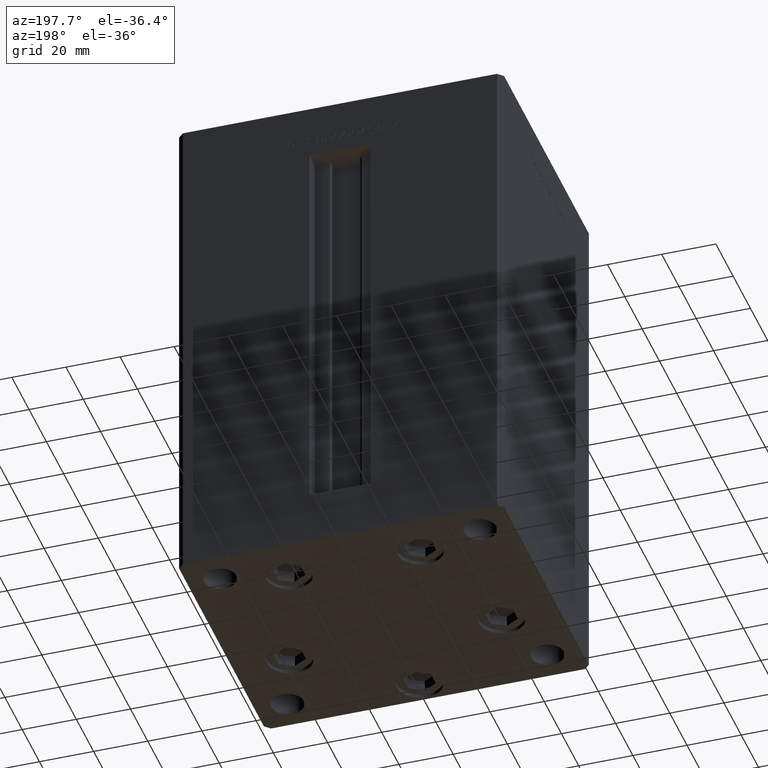
[diagram: clean part render]
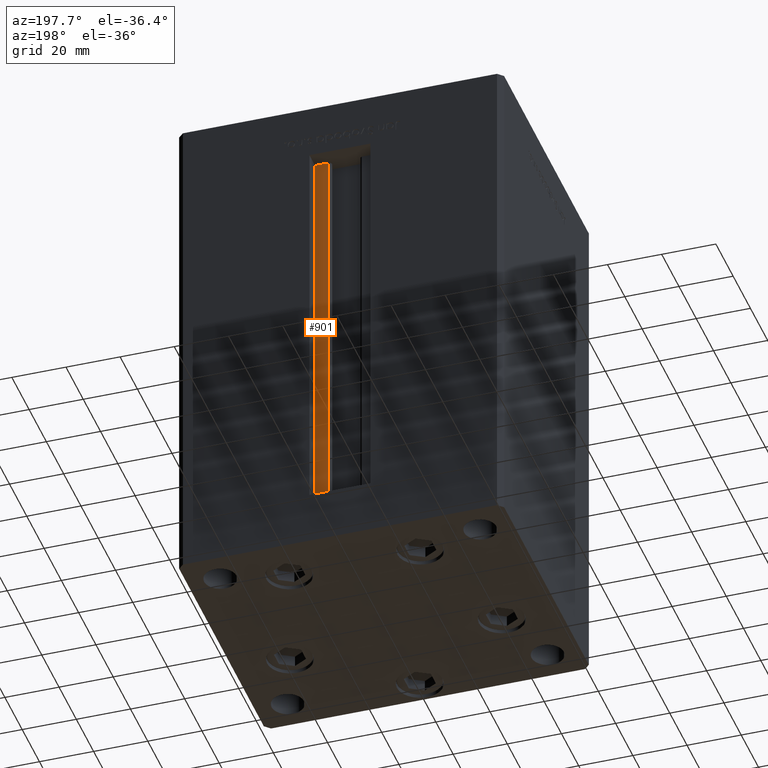
[diagram: same view with one face highlighted and labeled with its STEP entity id]
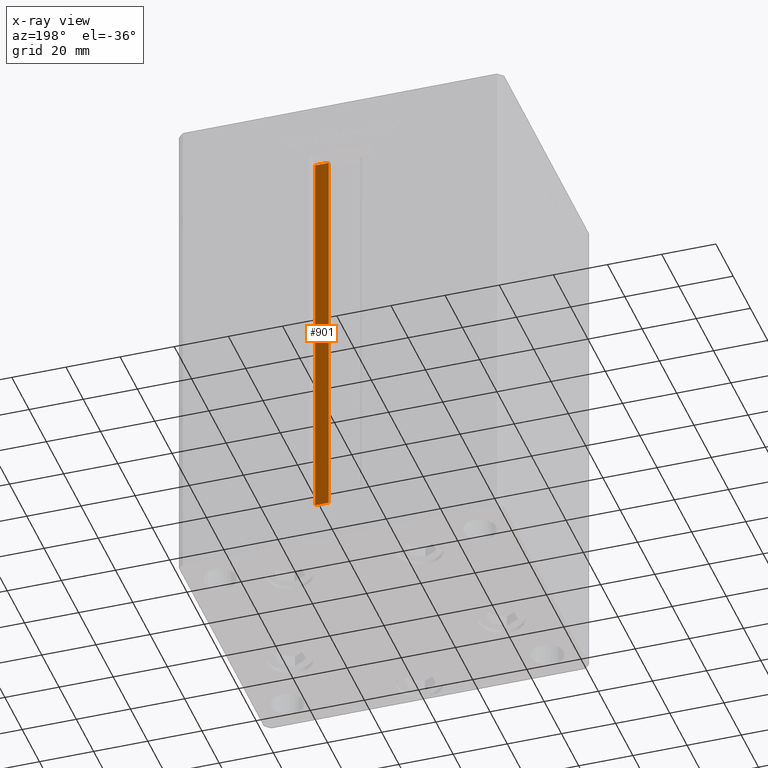
[diagram: x-ray of the same camera — body ghosted, the highlighted face saturated]
A machine part, auxiliary view. The second image highlights one B-rep face of the part: STEP entity #901.
The next image is the same camera in x-ray: the body ghosted, the highlighted face saturated — about 0% of this face is hidden behind the body in this view.
In plain terms, the highlighted planar face has unit normal (0, -1, 0).
Its self-contained STEP definition (entity closure, byte-faithful):
#901 = ADVANCED_FACE ( 'NONE', ( #48618 ), #45176, .F. ) ;
#933 = LINE ( 'NONE', #33603, #14041 ) ;
#1421 = EDGE_CURVE ( 'NONE', #10112, #39448, #29067, .T. ) ;
#2836 = LINE ( 'NONE', #18920, #15592 ) ;
#4297 = ORIENTED_EDGE ( 'NONE', *, *, #1421, .F. ) ;
#5234 = CARTESIAN_POINT ( 'NONE',  ( 11.25000000000000178, 44.50000000000000000, 148.5000000000000000 ) ) ;
#6632 = CARTESIAN_POINT ( 'NONE',  ( 6.183333333334001480, 44.50000000000000000, 0.000000000000000000 ) ) ;
#10112 = VERTEX_POINT ( 'NONE', #31961 ) ;
#14041 = VECTOR ( 'NONE', #49682, 1000.000000000000000 ) ;
#14801 = LINE ( 'NONE', #6632, #32666 ) ;
#15592 = VECTOR ( 'NONE', #47113, 1000.000000000000000 ) ;
#16938 = VECTOR ( 'NONE', #45141, 1000.000000000000000 ) ;
#18920 = CARTESIAN_POINT ( 'NONE',  ( 6.183333333334001480, 44.50000000000000000, 0.000000000000000000 ) ) ;
#19380 = ORIENTED_EDGE ( 'NONE', *, *, #32018, .T. ) ;
#19767 = EDGE_CURVE ( 'NONE', #47545, #10112, #2836, .T. ) ;
#19961 = ORIENTED_EDGE ( 'NONE', *, *, #23871, .F. ) ;
#21167 = CARTESIAN_POINT ( 'NONE',  ( 11.25000000000000178, 44.50000000000000000, 0.000000000000000000 ) ) ;
#22702 = DIRECTION ( 'NONE',  ( -0.000000000000000000, -0.000000000000000000, 1.000000000000000000 ) ) ;
#22798 = AXIS2_PLACEMENT_3D ( 'NONE', #33313, #49141, #49397 ) ;
#23871 = EDGE_CURVE ( 'NONE', #39448, #52031, #933, .T. ) ;
#25833 = EDGE_LOOP ( 'NONE', ( #4297, #41710, #19380, #19961 ) ) ;
#28721 = CARTESIAN_POINT ( 'NONE',  ( 6.183333333334001480, 44.50000000000000000, 148.5000000000000000 ) ) ;
#29067 = LINE ( 'NONE', #21167, #16938 ) ;
#31961 = CARTESIAN_POINT ( 'NONE',  ( 11.25000000000000178, 44.50000000000000000, 0.000000000000000000 ) ) ;
#32018 = EDGE_CURVE ( 'NONE', #47545, #52031, #14801, .T. ) ;
#32666 = VECTOR ( 'NONE', #22702, 1000.000000000000000 ) ;
#33313 = CARTESIAN_POINT ( 'NONE',  ( 6.183333333334001480, 44.50000000000000000, 0.000000000000000000 ) ) ;
#33603 = CARTESIAN_POINT ( 'NONE',  ( 0.000000000000000000, 44.50000000000000000, 148.5000000000000000 ) ) ;
#35447 = CARTESIAN_POINT ( 'NONE',  ( 6.183333333334001480, 44.50000000000000000, 0.000000000000000000 ) ) ;
#39448 = VERTEX_POINT ( 'NONE', #5234 ) ;
#41710 = ORIENTED_EDGE ( 'NONE', *, *, #19767, .F. ) ;
#45141 = DIRECTION ( 'NONE',  ( -0.000000000000000000, -0.000000000000000000, 1.000000000000000000 ) ) ;
#45176 = PLANE ( 'NONE',  #22798 ) ;
#47113 = DIRECTION ( 'NONE',  ( 1.000000000000000000, 0.000000000000000000, 0.000000000000000000 ) ) ;
#47545 = VERTEX_POINT ( 'NONE', #35447 ) ;
#48618 = FACE_OUTER_BOUND ( 'NONE', #25833, .T. ) ;
#49141 = DIRECTION ( 'NONE',  ( 0.000000000000000000, -1.000000000000000000, 0.000000000000000000 ) ) ;
#49397 = DIRECTION ( 'NONE',  ( 0.000000000000000000, -0.000000000000000000, -1.000000000000000000 ) ) ;
#49682 = DIRECTION ( 'NONE',  ( -1.000000000000000000, 0.000000000000000000, 0.000000000000000000 ) ) ;
#52031 = VERTEX_POINT ( 'NONE', #28721 ) ;